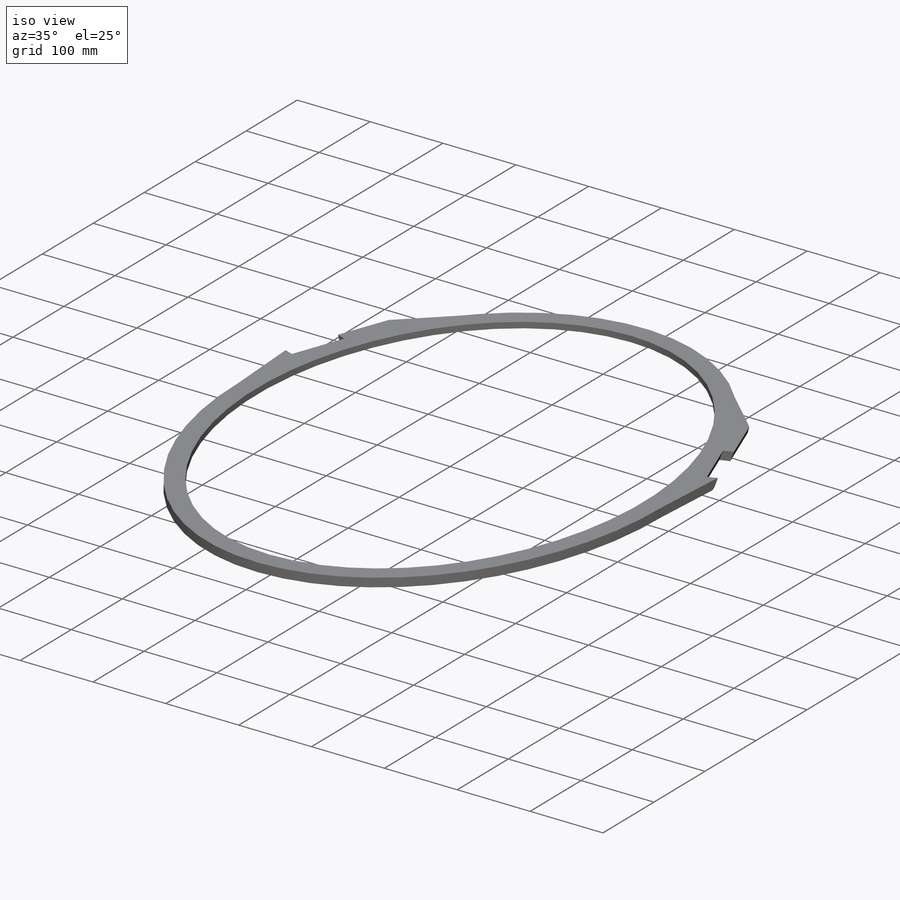
[diagram: iso view]
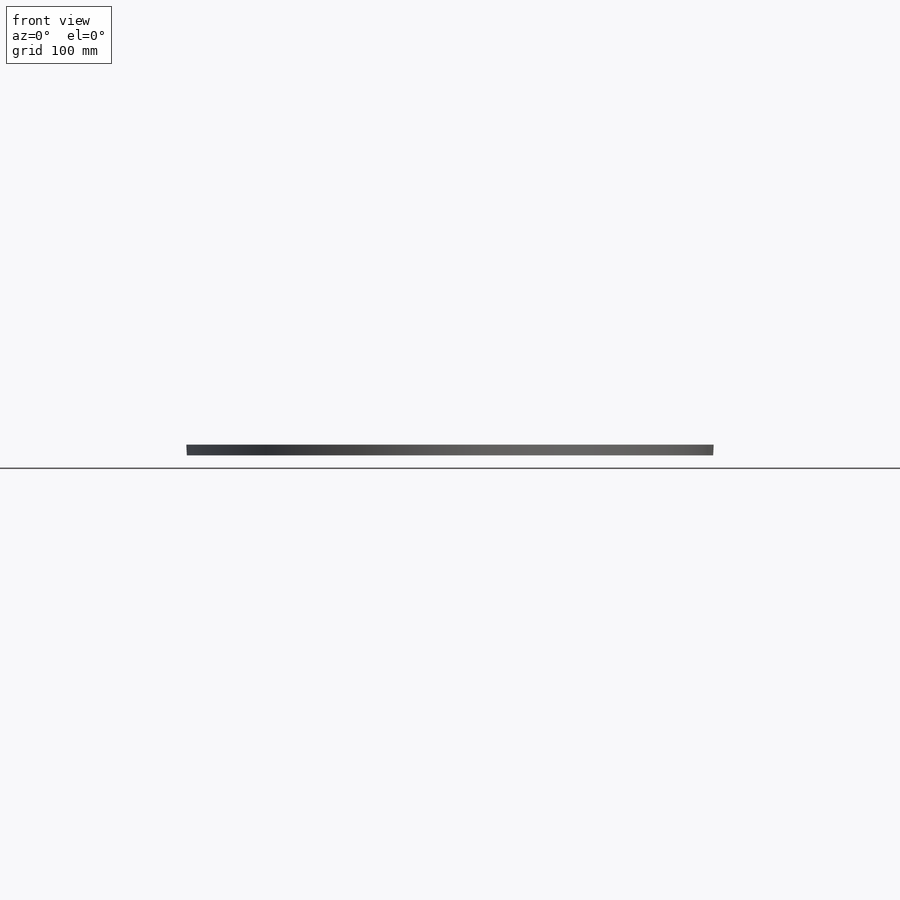
[diagram: front view]
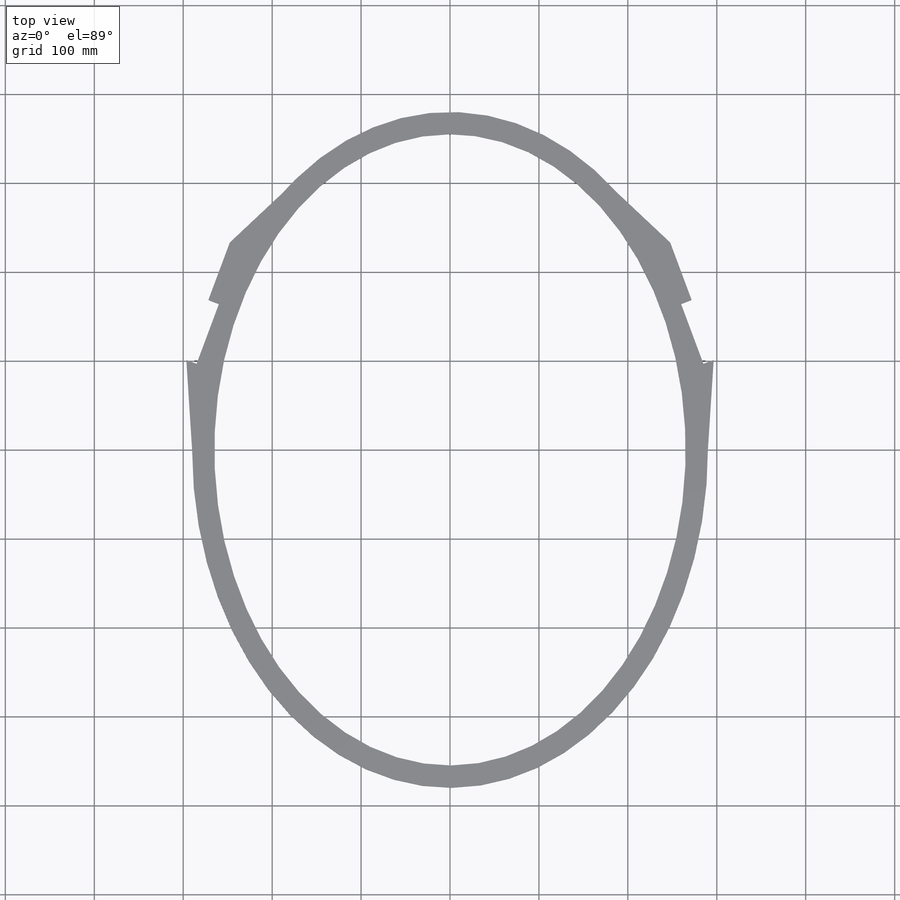
[diagram: top view]
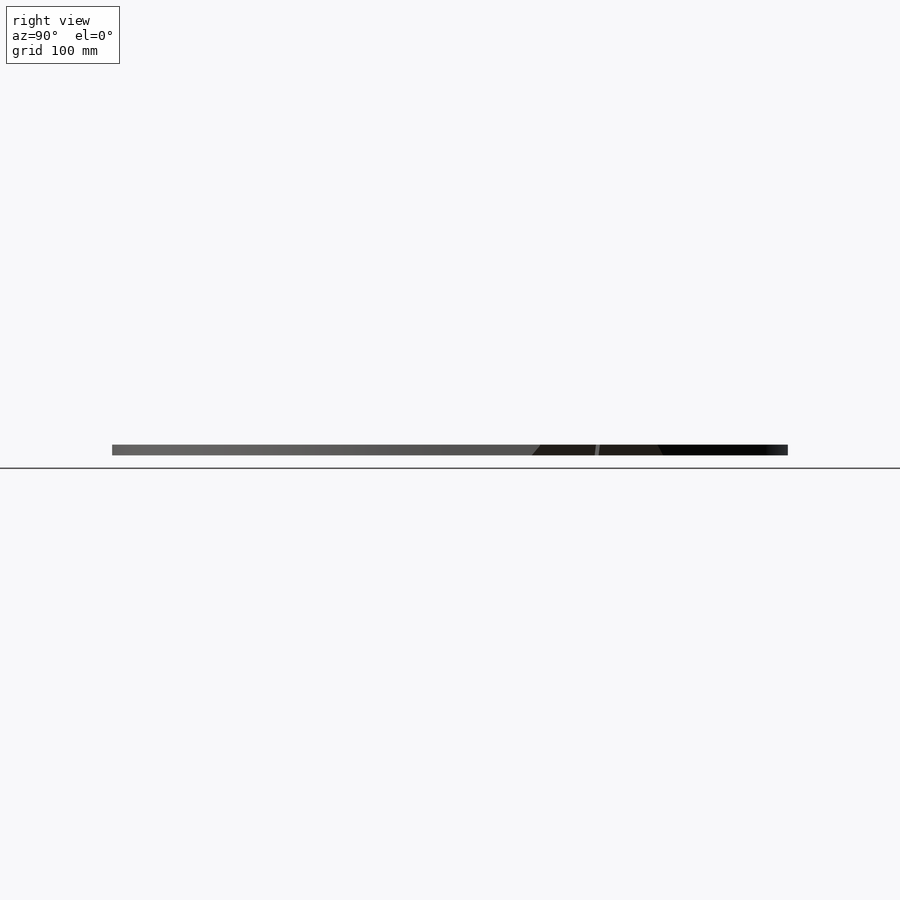
[diagram: right view]
SOLIDWORKS PART (.sldprt)
format: sldprt  version: not decoded by parser v0  size: 922,624 bytes
history: native  units: mm
features: sketch x7, cut_extrude x5, extrude x2, material x1, plane x1, mirror x1 (+12 scaffold rows collapsed)
feature tree (29):
  scaffold x12  (default folders/planes/origin — collapsed)
  material  "Material <not specified>"
  sketch  "Sketch1"  dims[c1.D1=530.0mm c1.D2=710.0mm c1.D3=580.0mm c1.D4=760.0mm c1.D5=20.0mm c1.D6=260.0mm c1.D7=60.0mm c2.D6=30.0mm c2.D8=10.0mm c2.D9=10.0mm]
  extrude  "Boss-Extrude1"  Depth=12mm
  sketch  "Sketch2"  dims[D1=10.0mm D2=10.0mm]
  cut_extrude  "Cut-Extrude1"  Depth=4mm
  sketch  "Sketch4"
  extrude  "Boss-Extrude2"  Depth=12mm
  plane  "Plane1"
  sketch  "Sketch5"
  cut_extrude  "Cut-Extrude2"  [1 undecoded]
  sketch  "Sketch6"  dims[D1=0.0mm]
  cut_extrude  "Cut-Extrude3"  Depth=12mm
  mirror  "Mirror1"
  sketch  "Sketch7"  dims[D1=500.0mm]
  cut_extrude  "Cut-Extrude4"  Depth=12mm
  sketch  "Sketch8"  dims[D1=500.0mm]
  cut_extrude  "Cut-Extrude5"  Depth=12mm
decode coverage: 11 of 15 modeling features carry decoded parameters
note: 1 parameter value undecoded
note: suppression state not decoded; provenance and decode notes live in map.json
